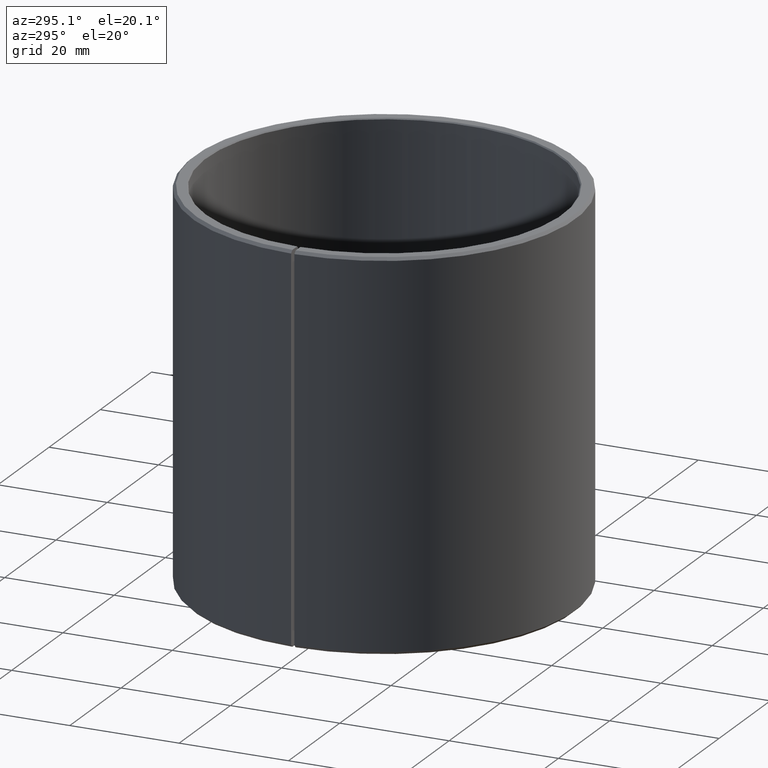
[diagram: clean part render]
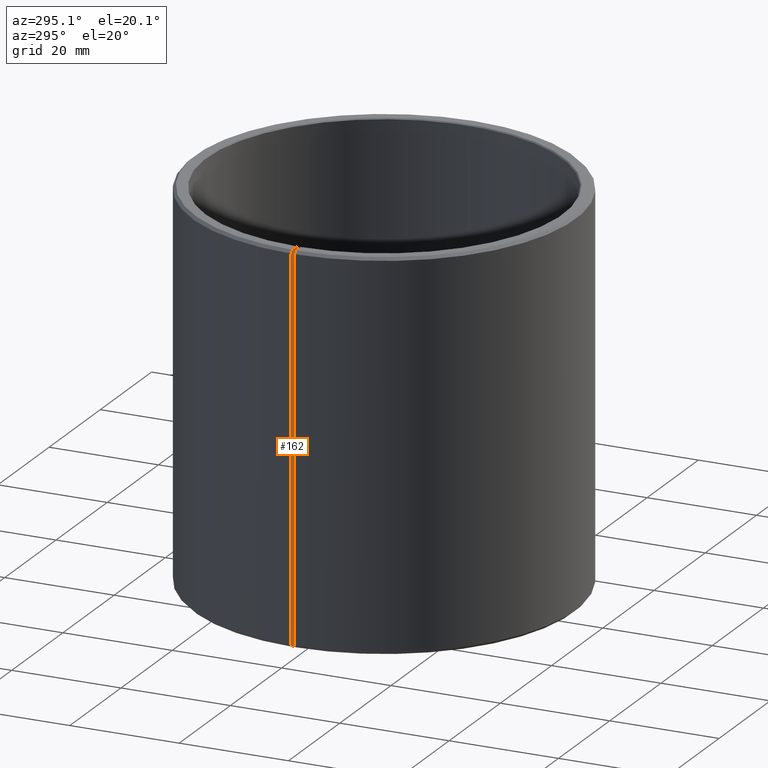
[diagram: same view with one face highlighted and labeled with its STEP entity id]
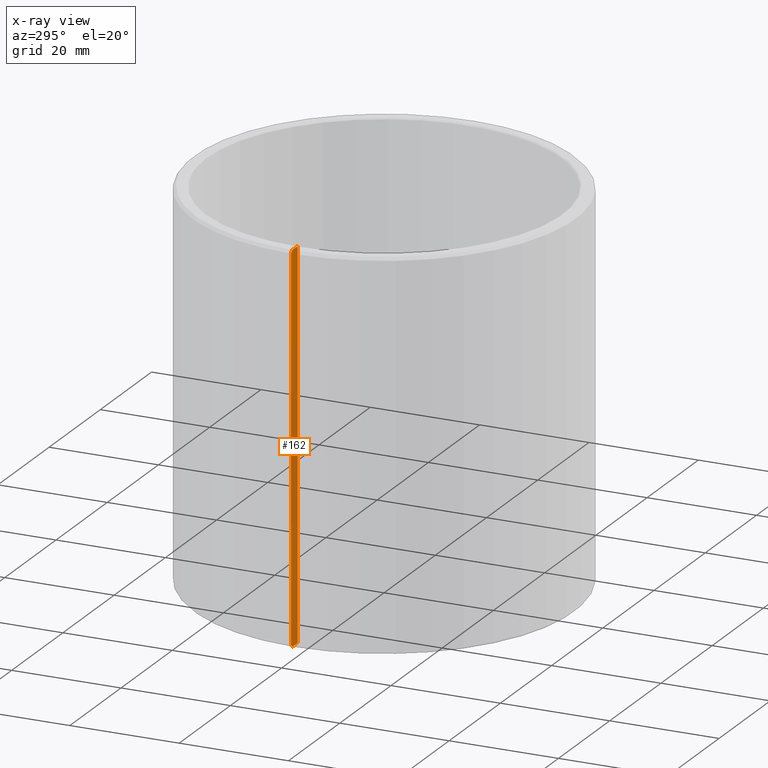
[diagram: x-ray of the same camera — body ghosted, the highlighted face saturated]
A machine part, auxiliary view. The second image highlights one B-rep face of the part: STEP entity #162.
The next image is the same camera in x-ray: the body ghosted, the highlighted face saturated — about 0% of this face is hidden behind the body in this view.
In plain terms, the highlighted planar face has unit normal (0.0175, 0.9998, 0).
Its self-contained STEP definition (entity closure, byte-faithful):
#162=ADVANCED_FACE('',(#183),#184,.F.);
#183=FACE_OUTER_BOUND('',#204,.T.);
#184=PLANE('',#205);
#204=EDGE_LOOP('',(#273,#274,#275,#276,#277,#278,#279,#280));
#205=AXIS2_PLACEMENT_3D('',#281,#282,#283);
#273=ORIENTED_EDGE('',*,*,#307,.F.);
#274=ORIENTED_EDGE('',*,*,#303,.F.);
#275=ORIENTED_EDGE('',*,*,#302,.F.);
#276=ORIENTED_EDGE('',*,*,#299,.F.);
#277=ORIENTED_EDGE('',*,*,#296,.F.);
#278=ORIENTED_EDGE('',*,*,#293,.F.);
#279=ORIENTED_EDGE('',*,*,#290,.F.);
#280=ORIENTED_EDGE('',*,*,#287,.F.);
#281=CARTESIAN_POINT('',(-0.000104714438623705,-0.00599908617093836,-6.4119101042514E-021));
#282=DIRECTION('',(0.999847695156391,-0.0174524064372836,-9.3259819610035E-021));
#283=DIRECTION('',(9.32598196100733E-021,1.0686516840419E-018,-1.0));
#287=EDGE_CURVE('',#313,#308,#315,.T.);
#290=EDGE_CURVE('',#308,#316,#320,.T.);
#293=EDGE_CURVE('',#316,#321,#325,.T.);
#296=EDGE_CURVE('',#321,#326,#330,.T.);
#299=EDGE_CURVE('',#326,#331,#335,.T.);
#302=EDGE_CURVE('',#331,#336,#340,.T.);
#303=EDGE_CURVE('',#336,#341,#342,.T.);
#307=EDGE_CURVE('',#341,#313,#347,.T.);
#308=VERTEX_POINT('',#348);
#313=VERTEX_POINT('',#354);
#315=LINE('',#356,#357);
#316=VERTEX_POINT('',#358);
#320=LINE('',#363,#364);
#321=VERTEX_POINT('',#365);
#325=LINE('',#370,#371);
#326=VERTEX_POINT('',#372);
#330=LINE('',#377,#378);
#331=VERTEX_POINT('',#379);
#335=LINE('',#384,#385);
#336=VERTEX_POINT('',#386);
#340=LINE('',#391,#392);
#341=VERTEX_POINT('',#393);
#342=LINE('',#394,#395);
#347=LINE('',#402,#403);
#348=CARTESIAN_POINT('',(0.000567203209211713,0.0324950500925827,0.000200000000000006));
#354=CARTESIAN_POINT('',(0.000567203209211708,0.0324950500925827,0.0698));
#356=CARTESIAN_POINT('',(0.000567203209211708,0.0324950500925827,0.0698));
#357=VECTOR('',#411,1.0);
#358=CARTESIAN_POINT('',(0.000570693690499169,0.032695019631614,2.33887452659986E-018));
#363=CARTESIAN_POINT('',(0.000567203209211713,0.0324950500925827,0.0002));
#364=VECTOR('',#416,1.0);
#365=CARTESIAN_POINT('',(0.00060210802208628,0.0344947454828955,2.58474358844038E-018));
#370=CARTESIAN_POINT('',(0.000570693690499169,0.032695019631614,2.33205665580681E-018));
#371=VECTOR('',#421,1.0);
#372=CARTESIAN_POINT('',(0.000610834225304922,0.0349946693304737,0.0005));
#377=CARTESIAN_POINT('',(0.00060210802208628,0.0344947454828955,2.58474358844038E-018));
#378=VECTOR('',#426,1.0);
#379=CARTESIAN_POINT('',(0.000610834225304917,0.0349946693304737,0.0695));
#384=CARTESIAN_POINT('',(0.000610834225304922,0.0349946693304737,0.0005));
#385=VECTOR('',#431,1.0);
#386=CARTESIAN_POINT('',(0.000602108022086275,0.0344947454828955,0.07));
#391=CARTESIAN_POINT('',(0.000610834225304917,0.0349946693304737,0.0695));
#392=VECTOR('',#436,1.0);
#393=CARTESIAN_POINT('',(0.000570693690499165,0.0326950196316139,0.07));
#394=CARTESIAN_POINT('',(0.000602108022086275,0.0344947454828955,0.07));
#395=VECTOR('',#437,1.0);
#402=CARTESIAN_POINT('',(0.000570693690499165,0.0326950196316139,0.07));
#403=VECTOR('',#443,1.0);
#411=DIRECTION('',(6.23103054786957E-017,-1.88159581651608E-020,-1.0));
#416=DIRECTION('',(0.012340714939827,0.706999085398826,-0.707106781186545));
#421=DIRECTION('',(0.0174524064372836,0.999847695156391,1.40381629240871E-016));
#426=DIRECTION('',(0.0123407149398273,0.706999085398846,0.707106781186526));
#431=DIRECTION('',(-6.98723659749675E-017,-4.02165181526475E-016,1.0));
#436=DIRECTION('',(-0.012340714939827,-0.706999085398824,0.707106781186548));
#437=DIRECTION('',(-0.0174524064372836,-0.999847695156391,-1.0686516840419E-018));
#443=DIRECTION('',(-0.0123407149398265,-0.7069990853988,-0.707106781186572));